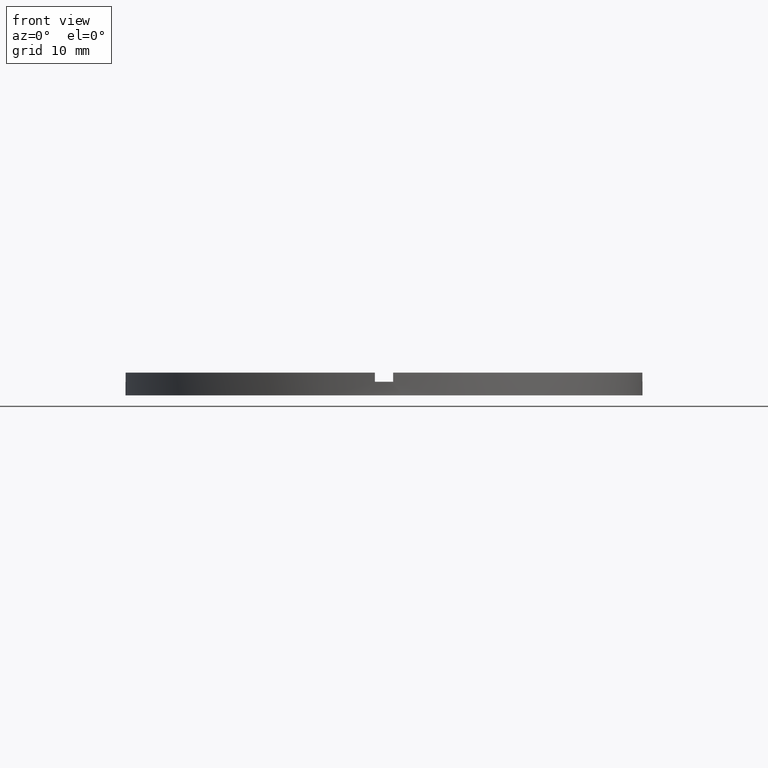
[diagram: clean part render]
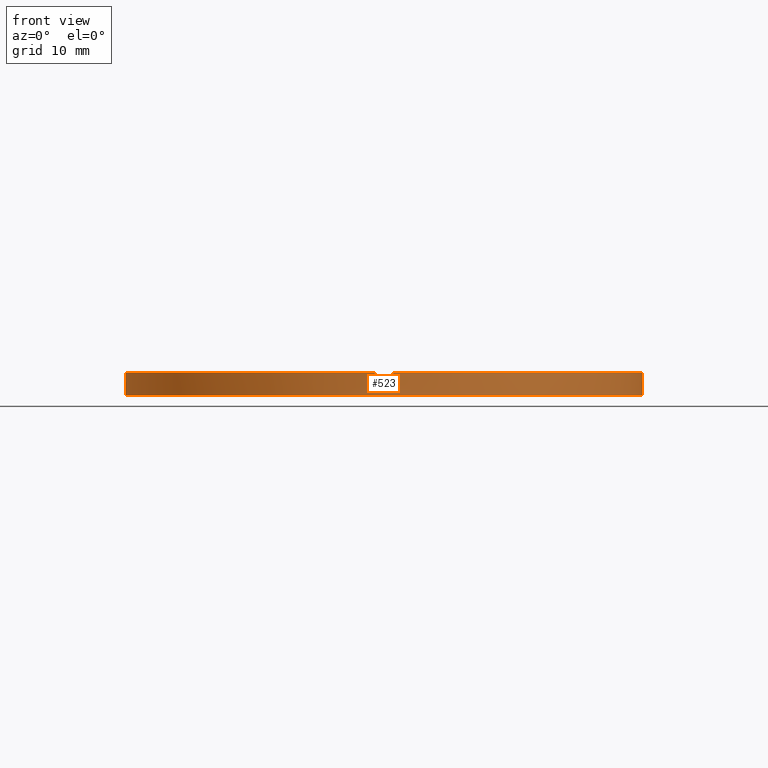
[diagram: same view with one face highlighted and labeled with its STEP entity id]
A machine part, front view. The second image highlights one B-rep face of the part: STEP entity #523.
In plain terms, the highlighted cylindrical surface (partial cylindrical patch) has radius 28.5 mm, axis along (-0, -0, -1).
Its self-contained STEP definition (entity closure, byte-faithful):
#2 = EDGE_CURVE ( 'NONE', #60, #546, #38, .T. ) ;
#5 = DIRECTION ( 'NONE',  ( 1.000000000000000000, 0.000000000000000000, 0.000000000000000000 ) ) ;
#6 = CARTESIAN_POINT ( 'NONE',  ( 0.9999999999998404610, -28.48245073725223264, 2.500000000000000000 ) ) ;
#12 = LINE ( 'NONE', #6, #277 ) ;
#17 = EDGE_CURVE ( 'NONE', #582, #305, #311, .T. ) ;
#19 = DIRECTION ( 'NONE',  ( -0.000000000000000000, -0.000000000000000000, -1.000000000000000000 ) ) ;
#22 = DIRECTION ( 'NONE',  ( -0.000000000000000000, -0.000000000000000000, -1.000000000000000000 ) ) ;
#35 = VECTOR ( 'NONE', #601, 1000.000000000000000 ) ;
#38 = LINE ( 'NONE', #412, #35 ) ;
#39 = EDGE_CURVE ( 'NONE', #57, #305, #12, .T. ) ;
#46 = DIRECTION ( 'NONE',  ( 1.000000000000000000, 0.000000000000000000, 0.000000000000000000 ) ) ;
#49 = DIRECTION ( 'NONE',  ( 1.000000000000000000, 0.000000000000000000, 0.000000000000000000 ) ) ;
#57 = VERTEX_POINT ( 'NONE', #479 ) ;
#60 = VERTEX_POINT ( 'NONE', #711 ) ;
#63 = VERTEX_POINT ( 'NONE', #93 ) ;
#70 = VERTEX_POINT ( 'NONE', #570 ) ;
#83 = DIRECTION ( 'NONE',  ( -0.000000000000000000, -0.000000000000000000, -1.000000000000000000 ) ) ;
#86 = ORIENTED_EDGE ( 'NONE', *, *, #242, .F. ) ;
#93 = CARTESIAN_POINT ( 'NONE',  ( -28.48245073725222909, -1.000000000000027089, 1.500000000000000000 ) ) ;
#97 = DIRECTION ( 'NONE',  ( 0.000000000000000000, 0.000000000000000000, 1.000000000000000000 ) ) ;
#99 = ORIENTED_EDGE ( 'NONE', *, *, #125, .T. ) ;
#101 = CARTESIAN_POINT ( 'NONE',  ( 0.000000000000000000, 0.000000000000000000, 2.500000000000000000 ) ) ;
#103 = ORIENTED_EDGE ( 'NONE', *, *, #285, .T. ) ;
#105 = ORIENTED_EDGE ( 'NONE', *, *, #775, .T. ) ;
#108 = EDGE_CURVE ( 'NONE', #747, #70, #387, .T. ) ;
#125 = EDGE_CURVE ( 'NONE', #546, #604, #400, .T. ) ;
#152 = DIRECTION ( 'NONE',  ( -1.000000000000000000, 0.000000000000000000, 0.000000000000000000 ) ) ;
#157 = FACE_OUTER_BOUND ( 'NONE', #201, .T. ) ;
#165 = LINE ( 'NONE', #722, #432 ) ;
#180 = LINE ( 'NONE', #516, #456 ) ;
#183 = DIRECTION ( 'NONE',  ( 0.000000000000000000, 0.000000000000000000, 1.000000000000000000 ) ) ;
#185 = CARTESIAN_POINT ( 'NONE',  ( 28.50000000000000000, 3.490243377569956456E-15, 1.500000000000000000 ) ) ;
#201 = EDGE_LOOP ( 'NONE', ( #622, #86, #103, #349, #749, #207, #105, #613, #372, #629, #576, #99 ) ) ;
#207 = ORIENTED_EDGE ( 'NONE', *, *, #17, .F. ) ;
#216 = AXIS2_PLACEMENT_3D ( 'NONE', #276, #97, #235 ) ;
#235 = DIRECTION ( 'NONE',  ( 1.000000000000000000, 0.000000000000000000, 0.000000000000000000 ) ) ;
#242 = EDGE_CURVE ( 'NONE', #718, #632, #395, .T. ) ;
#254 = AXIS2_PLACEMENT_3D ( 'NONE', #454, #612, #5 ) ;
#260 = CARTESIAN_POINT ( 'NONE',  ( -1.000000000000159650, -28.48245073725222554, 1.500000000000000000 ) ) ;
#276 = CARTESIAN_POINT ( 'NONE',  ( 0.000000000000000000, 0.000000000000000000, 1.500000000000000000 ) ) ;
#277 = VECTOR ( 'NONE', #19, 1000.000000000000000 ) ;
#285 = EDGE_CURVE ( 'NONE', #718, #331, #414, .T. ) ;
#305 = VERTEX_POINT ( 'NONE', #756 ) ;
#311 = CIRCLE ( 'NONE', #746, 28.50000000000000000 ) ;
#322 = CARTESIAN_POINT ( 'NONE',  ( 28.50000000000000000, 3.490243377569956456E-15, 0.000000000000000000 ) ) ;
#331 = VERTEX_POINT ( 'NONE', #491 ) ;
#349 = ORIENTED_EDGE ( 'NONE', *, *, #739, .F. ) ;
#372 = ORIENTED_EDGE ( 'NONE', *, *, #561, .T. ) ;
#379 = AXIS2_PLACEMENT_3D ( 'NONE', #101, #444, #614 ) ;
#387 = CIRCLE ( 'NONE', #379, 28.50000000000000000 ) ;
#389 = CARTESIAN_POINT ( 'NONE',  ( 28.48245073725222554, -1.000000000000156763, 2.500000000000000000 ) ) ;
#395 = CIRCLE ( 'NONE', #254, 28.50000000000000000 ) ;
#400 = CIRCLE ( 'NONE', #466, 28.50000000000000000 ) ;
#408 = CARTESIAN_POINT ( 'NONE',  ( -28.50000000000000000, 0.000000000000000000, 0.000000000000000000 ) ) ;
#412 = CARTESIAN_POINT ( 'NONE',  ( -28.50000000000000000, 0.000000000000000000, 2.500000000000000000 ) ) ;
#414 = LINE ( 'NONE', #389, #677 ) ;
#426 = CARTESIAN_POINT ( 'NONE',  ( -1.000000000000159650, -28.48245073725222554, 2.500000000000000000 ) ) ;
#432 = VECTOR ( 'NONE', #83, 1000.000000000000000 ) ;
#441 = DIRECTION ( 'NONE',  ( 0.000000000000000000, 0.000000000000000000, 1.000000000000000000 ) ) ;
#444 = DIRECTION ( 'NONE',  ( 0.000000000000000000, 0.000000000000000000, 1.000000000000000000 ) ) ;
#451 = VECTOR ( 'NONE', #441, 1000.000000000000000 ) ;
#454 = CARTESIAN_POINT ( 'NONE',  ( 0.000000000000000000, 0.000000000000000000, 1.500000000000000000 ) ) ;
#455 = CIRCLE ( 'NONE', #216, 28.50000000000000000 ) ;
#456 = VECTOR ( 'NONE', #22, 1000.000000000000000 ) ;
#466 = AXIS2_PLACEMENT_3D ( 'NONE', #539, #674, #49 ) ;
#479 = CARTESIAN_POINT ( 'NONE',  ( 0.9999999999998404610, -28.48245073725223264, 2.500000000000000000 ) ) ;
#491 = CARTESIAN_POINT ( 'NONE',  ( 28.48245073725222554, -1.000000000000156763, 2.500000000000000000 ) ) ;
#506 = AXIS2_PLACEMENT_3D ( 'NONE', #648, #183, #46 ) ;
#514 = EDGE_CURVE ( 'NONE', #632, #604, #165, .T. ) ;
#516 = CARTESIAN_POINT ( 'NONE',  ( -28.48245073725222909, -1.000000000000027089, 2.500000000000000000 ) ) ;
#520 = CARTESIAN_POINT ( 'NONE',  ( 0.000000000000000000, 0.000000000000000000, 2.500000000000000000 ) ) ;
#522 = EDGE_CURVE ( 'NONE', #60, #63, #455, .T. ) ;
#523 = ADVANCED_FACE ( 'NONE', ( #157 ), #690, .T. ) ;
#539 = CARTESIAN_POINT ( 'NONE',  ( 0.000000000000000000, 0.000000000000000000, 0.000000000000000000 ) ) ;
#544 = AXIS2_PLACEMENT_3D ( 'NONE', #520, #755, #152 ) ;
#546 = VERTEX_POINT ( 'NONE', #408 ) ;
#561 = EDGE_CURVE ( 'NONE', #747, #63, #180, .T. ) ;
#570 = CARTESIAN_POINT ( 'NONE',  ( -1.000000000000159650, -28.48245073725222554, 2.500000000000000000 ) ) ;
#576 = ORIENTED_EDGE ( 'NONE', *, *, #2, .T. ) ;
#582 = VERTEX_POINT ( 'NONE', #260 ) ;
#601 = DIRECTION ( 'NONE',  ( -0.000000000000000000, -0.000000000000000000, -1.000000000000000000 ) ) ;
#604 = VERTEX_POINT ( 'NONE', #322 ) ;
#612 = DIRECTION ( 'NONE',  ( 0.000000000000000000, 0.000000000000000000, 1.000000000000000000 ) ) ;
#613 = ORIENTED_EDGE ( 'NONE', *, *, #108, .F. ) ;
#614 = DIRECTION ( 'NONE',  ( 1.000000000000000000, 0.000000000000000000, 0.000000000000000000 ) ) ;
#622 = ORIENTED_EDGE ( 'NONE', *, *, #514, .F. ) ;
#629 = ORIENTED_EDGE ( 'NONE', *, *, #522, .F. ) ;
#632 = VERTEX_POINT ( 'NONE', #185 ) ;
#634 = DIRECTION ( 'NONE',  ( 0.000000000000000000, 0.000000000000000000, 1.000000000000000000 ) ) ;
#648 = CARTESIAN_POINT ( 'NONE',  ( 0.000000000000000000, 0.000000000000000000, 2.500000000000000000 ) ) ;
#670 = CARTESIAN_POINT ( 'NONE',  ( 28.48245073725222554, -1.000000000000156763, 1.500000000000000000 ) ) ;
#674 = DIRECTION ( 'NONE',  ( 0.000000000000000000, 0.000000000000000000, 1.000000000000000000 ) ) ;
#677 = VECTOR ( 'NONE', #634, 1000.000000000000000 ) ;
#690 = CYLINDRICAL_SURFACE ( 'NONE', #544, 28.50000000000000000 ) ;
#692 = LINE ( 'NONE', #426, #451 ) ;
#694 = CIRCLE ( 'NONE', #506, 28.50000000000000000 ) ;
#706 = DIRECTION ( 'NONE',  ( -0.000000000000000000, 0.000000000000000000, 1.000000000000000000 ) ) ;
#711 = CARTESIAN_POINT ( 'NONE',  ( -28.50000000000000000, 0.000000000000000000, 1.500000000000000000 ) ) ;
#718 = VERTEX_POINT ( 'NONE', #670 ) ;
#722 = CARTESIAN_POINT ( 'NONE',  ( 28.50000000000000000, 3.490243377569956456E-15, 2.500000000000000000 ) ) ;
#739 = EDGE_CURVE ( 'NONE', #57, #331, #694, .T. ) ;
#746 = AXIS2_PLACEMENT_3D ( 'NONE', #761, #706, #758 ) ;
#747 = VERTEX_POINT ( 'NONE', #782 ) ;
#749 = ORIENTED_EDGE ( 'NONE', *, *, #39, .T. ) ;
#755 = DIRECTION ( 'NONE',  ( -0.000000000000000000, -0.000000000000000000, -1.000000000000000000 ) ) ;
#756 = CARTESIAN_POINT ( 'NONE',  ( 0.9999999999998404610, -28.48245073725223264, 1.500000000000000000 ) ) ;
#758 = DIRECTION ( 'NONE',  ( 1.000000000000000000, 0.000000000000000000, 0.000000000000000000 ) ) ;
#761 = CARTESIAN_POINT ( 'NONE',  ( 0.000000000000000000, 0.000000000000000000, 1.500000000000000000 ) ) ;
#775 = EDGE_CURVE ( 'NONE', #582, #70, #692, .T. ) ;
#782 = CARTESIAN_POINT ( 'NONE',  ( -28.48245073725222909, -1.000000000000027089, 2.500000000000000000 ) ) ;